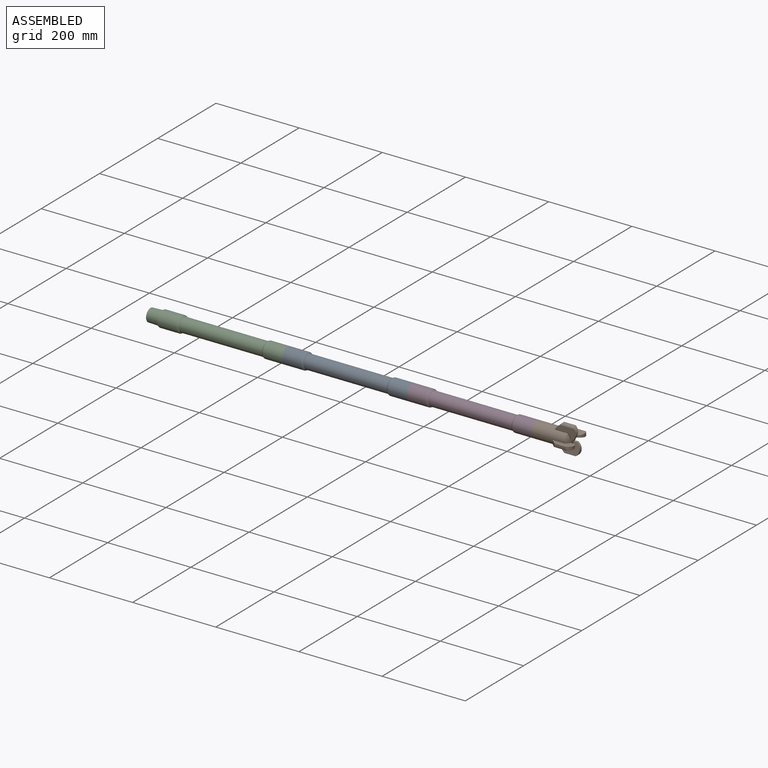
[diagram: assembled view]
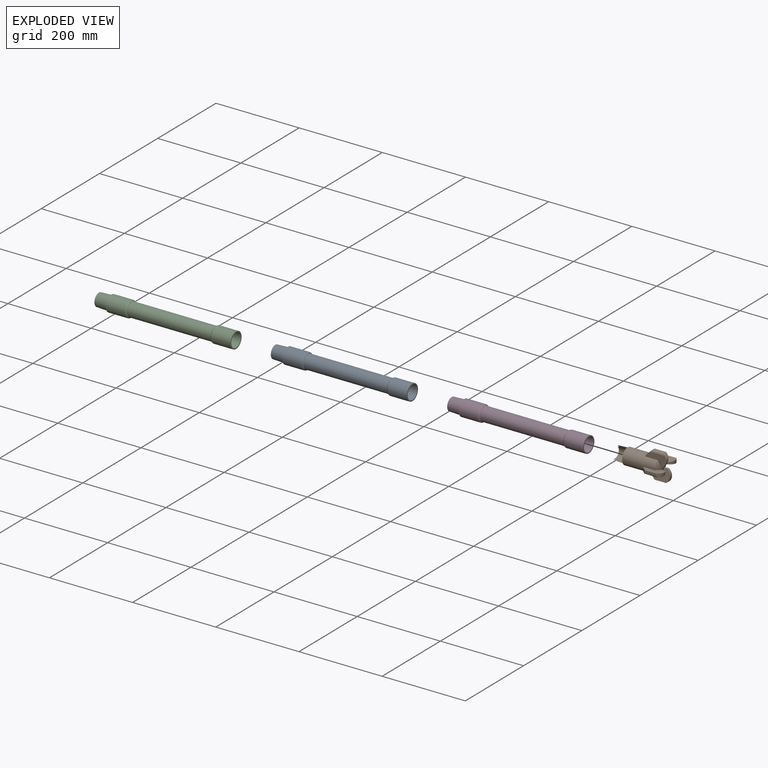
[diagram: exploded view]
GUIDED TOUR — MATED ASSEMBLY (Onshape document b1b5577ab006e5e6c1cf4b18, AutoMate assembly b1b5577ab006e5e6c1cf4b18_703199fe01c6d5e2c7dfa718_9336e0c108ce8c5486444dc7_default)

This assembly has 4 components, labeled P0..P3 below (a component is one placed occurrence of a part; the same part can appear more than once), held together by 3 mates. A mate is a constraint between two components; its type names the relative motion it leaves free:
  PLANAR — leaves sliding in the plane through the listed point (normal = the listed direction) and rotation about that normal free.
Axis/direction vectors are unit vectors and 'through' points are millimeter coordinates, both in the assembly's world frame.

MATES
  1. PLANAR "Planar 2": P3 <-> P0, direction (-1.000, 0.000, 0.000) through (551.21, 30.80, -28.46) mm
  2. PLANAR "Planar 1": P0 <-> P2, direction (-1.000, 0.000, 0.000) through (251.21, 30.80, -28.46) mm
  3. PLANAR "Planar 3": P1 <-> P3, direction (-1.000, 0.000, 0.000) through (851.21, 30.80, -28.46) mm

ASSEMBLY ORDER
  1. P0 — the base component [order heuristic]
  2. P2 [order heuristic]
  3. P3 [order heuristic]
  4. P1 [order heuristic]
Order-tag legend:
  [order heuristic] — this assembly is geometrically interlocked (no collision-free removal order exists), so components are listed in mate-graph order; insertion feasibility is not verified.

Of the 4 components, 3 carry the full construction recipe — the FeatureScript program that regenerates the part's solid from scratch; the rest are supplied as boundary geometry only.
Each toured component is shown spotlighted twice — in the assembled view, then in the exploded view, where a leader line traces a displaced component back to its assembled socket (saturated green if recipe-attached, orange if geometry-only; every other component desaturated gray) — followed by its recipe or geometry summary and the mates that hold it.
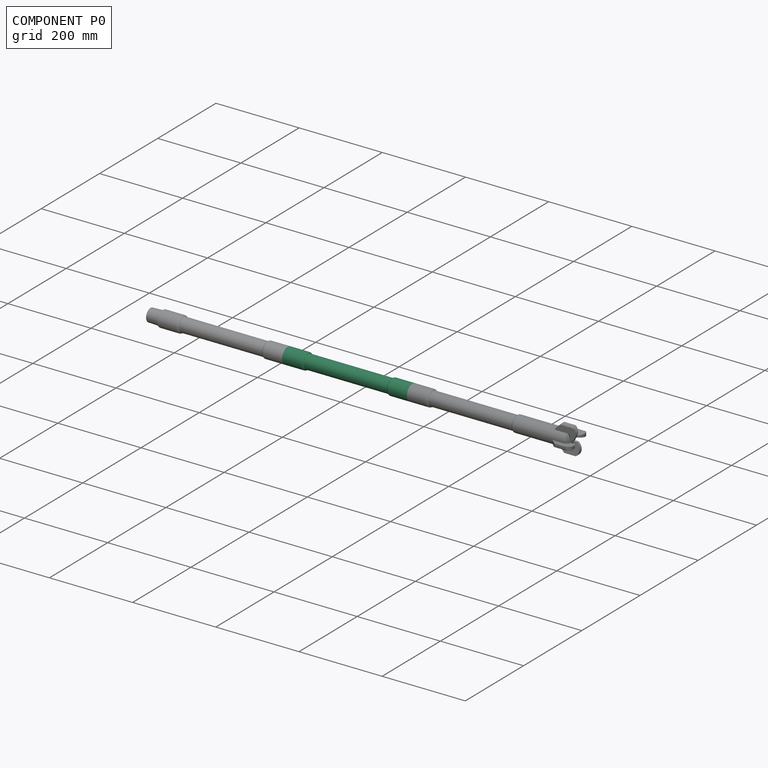
[diagram: component P0 — assembled]
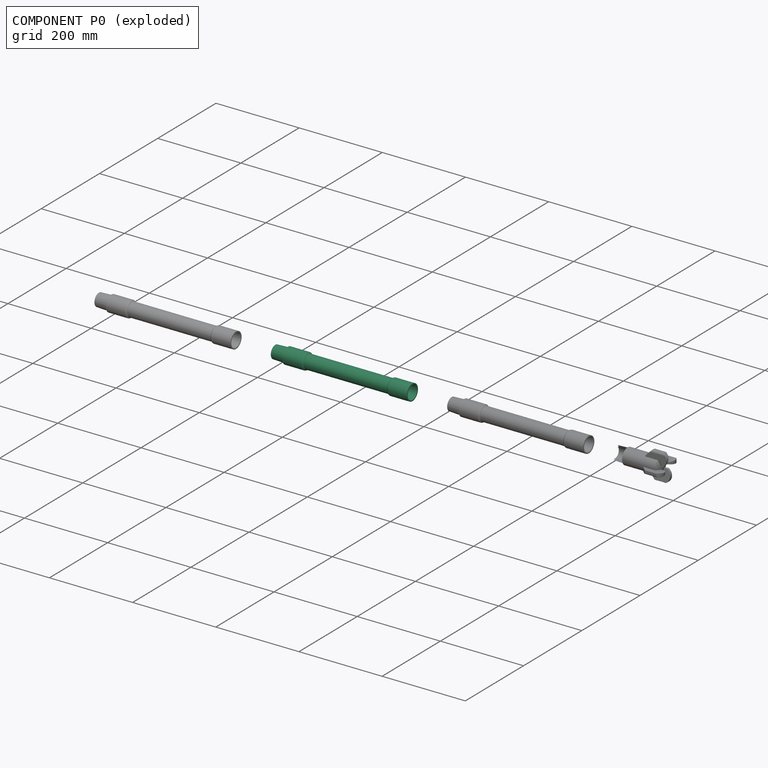
[diagram: component P0 — exploded]
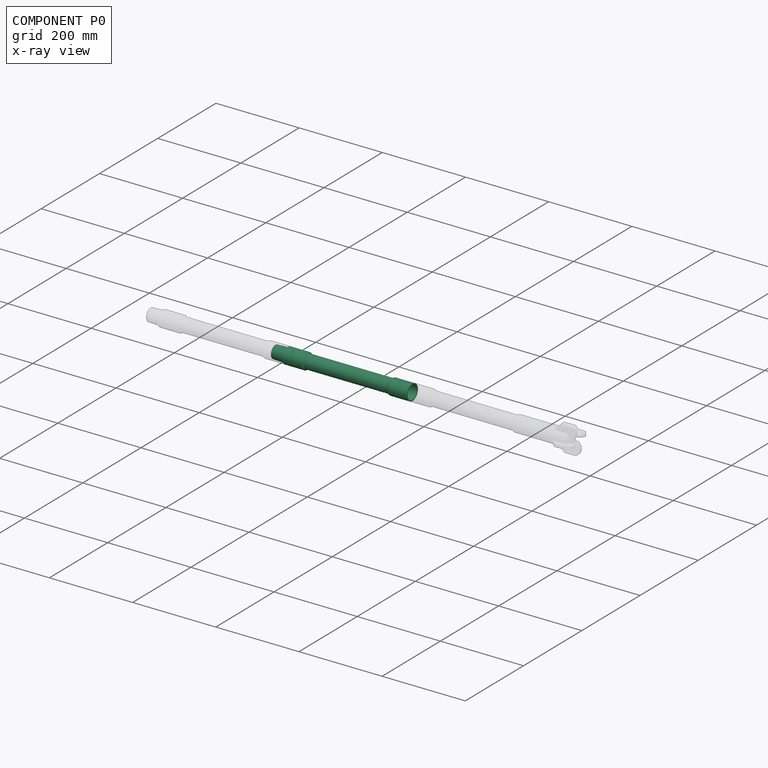
[diagram: component P0 — x-ray view]
COMPONENT P0 — recipe-attached (CADFS 00915986, mesh-verified: the recipe's output STEP matches this component's geometry to below the mesh-comparison resolution (tessellation chordal tolerance ~0.502 mm)).
Held by: PLANAR mate "Planar 2" to P3; PLANAR mate "Planar 1" to P2.
Construction recipe (FeatureScript — the CAD program that rebuilds this solid; sketch coordinates are in the units given by the * unit suffixes, e.g. mm):

FeatureScript 1511;
import(path : "onshape/std/geometry.fs", version : "1511.0");
import(path : "onshape/std/common.fs", version : "1511.0");
const mm = millimeter;
const VERTEX = EntityType.VERTEX;
const EDGE = EntityType.EDGE;
const FACE = EntityType.FACE;
const BODY = EntityType.BODY;
function v(x, y){return vector(x, y);}
function OD(order){return orderDisambiguation(order);}
function OSD(set){return originalSetDisambiguation(set);}
function TD(topology){return topologyDisambiguation(topology);}
function TDD(query){return trueDependencyDisambiguation(query);}
function sQuery(a, b, c) {return sketchEntityQuery(a, b, c);}

annotation { "Feature Type Name" : "Feature", "Feature Type Description" : "" }
export const myFeature = defineFeature(function(context is Context, id is Id, definition is map)
    precondition{}
    {
        {
            var Q0;
            Q0=qCreatedBy(makeId("Front.planeOp"),FACE);
            var sketch = newSketch(context, id + "F0", { "sketchPlane" : qUnion([Q0])});
            skLineSegment(sketch, "E0", {"start": v(0, 12.7) * mm, "end": v(0, 15.24) * mm});
            skLineSegment(sketch, "E1", {"start": v(80, 16.51) * mm, "end": v(80, 19.05) * mm});
            skLineSegment(sketch, "E2", {"start": v(280, 16.51) * mm, "end": v(280, 19.05) * mm});
            skLineSegment(sketch, "E3", {"start": v(290, 12.7) * mm, "end": v(290, 13.97) * mm});
            skLineSegment(sketch, "E4", {"start": v(280, 19.05) * mm, "end": v(330, 19.05) * mm});
            skLineSegment(sketch, "E5", {"start": v(30, 19.05) * mm, "end": v(80, 19.05) * mm});
            skLineSegment(sketch, "E6", {"start": v(280, 16.51) * mm, "end": v(80, 16.51) * mm});
            skLineSegment(sketch, "E7", {"start": v(330, 16.51) * mm, "end": v(330, 19.05) * mm});
            skLineSegment(sketch, "E8", {"start": v(290, 13.97) * mm, "end": v(330, 16.5) * mm});
            skPoint(sketch, "E9.end.orphan", {"position": v(330, 0) * mm});
            skLineSegment(sketch, "E10", {"start": v(30, 12.7) * mm, "end": v(0, 12.7) * mm});
            skLineSegment(sketch, "E11", {"start": v(30, 12.7) * mm, "end": v(290, 12.7) * mm});
            skLineSegment(sketch, "E12", {"start": v(0, 15.24) * mm, "end": v(30, 16.51) * mm});
            skLineSegment(sketch, "E13", {"start": v(30, 16.51) * mm, "end": v(30, 19.05) * mm});
            skPoint(sketch, "E14.end.orphan", {"position": v(290, 0) * mm});
            skPoint(sketch, "E15.end.orphan", {"position": v(80, 0) * mm});
            skSolve(sketch);
        }
        {
            var Q0;
            Q0=qCreatedBy(makeId("Right.planeOp"),FACE);
            var sketch = newSketch(context, id + "F1", { "sketchPlane" : qUnion([Q0])});
            skLineSegment(sketch, "E16", {"start": v(0, 0) * mm, "end": v(0, 12.7) * mm});
            skCircle(sketch, "E17", {"center": v(0, 0) * mm, "radius": 12.7 * mm});
            skSolve(sketch);
        }
        {
            var Q0;
            Q0 = qSketchRegion(id + "F0", true);
            var Q1;
            Q1=sQuery(id+"F1.wireOp",EDGE,"E17");
            revolve(context, id + "F2", {"surfaceOperationType" : NewSurfaceOperationType.NEW, "entities" : qUnion([Q0]), "axis" : qUnion([Q1]), "revolveType" : RevolveType.FULL});
        }
        {
            var Q0;
            Q0=makeQuery(id+"F2.opRevolve","SWEPT_EDGE",EDGE,{"disambiguationData":[OSD([sQuery(id+"F0.wireOp",EDGE,"E1"),sQuery(id+"F0.wireOp",EDGE,"E5")])]});
            var Q1;
            Q1=makeQuery(id+"F2.opRevolve","SWEPT_EDGE",EDGE,{"disambiguationData":[OSD([sQuery(id+"F0.wireOp",EDGE,"E2"),sQuery(id+"F0.wireOp",EDGE,"E4")])]});
            fillet(context, id + "F3", {"entities" : qUnion([Q0, Q1]), "radius" : 5 * mm, "tangentPropagation" : true, "allowEdgeOverflow" : false});
        }
    });
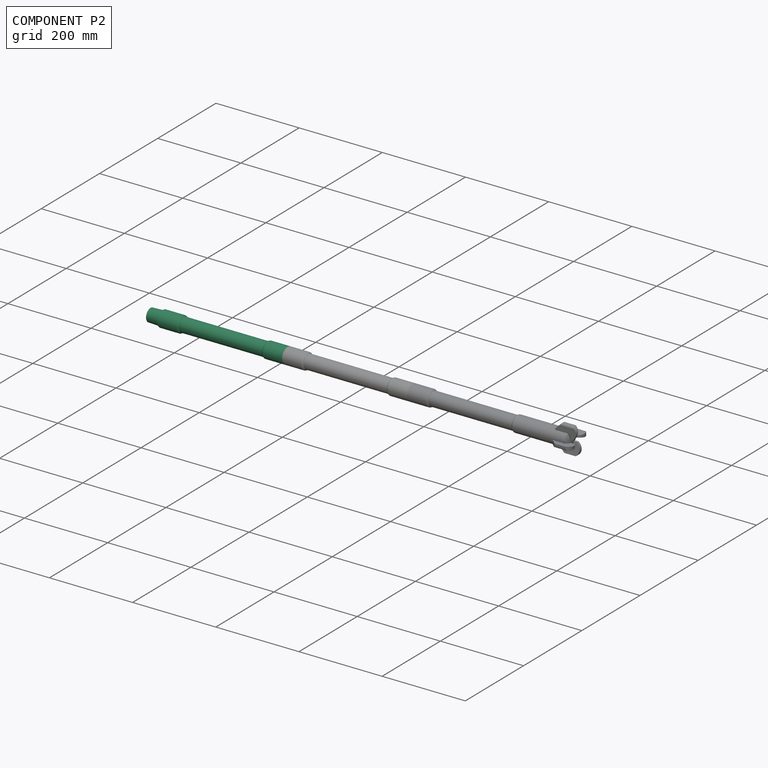
[diagram: component P2 — assembled]
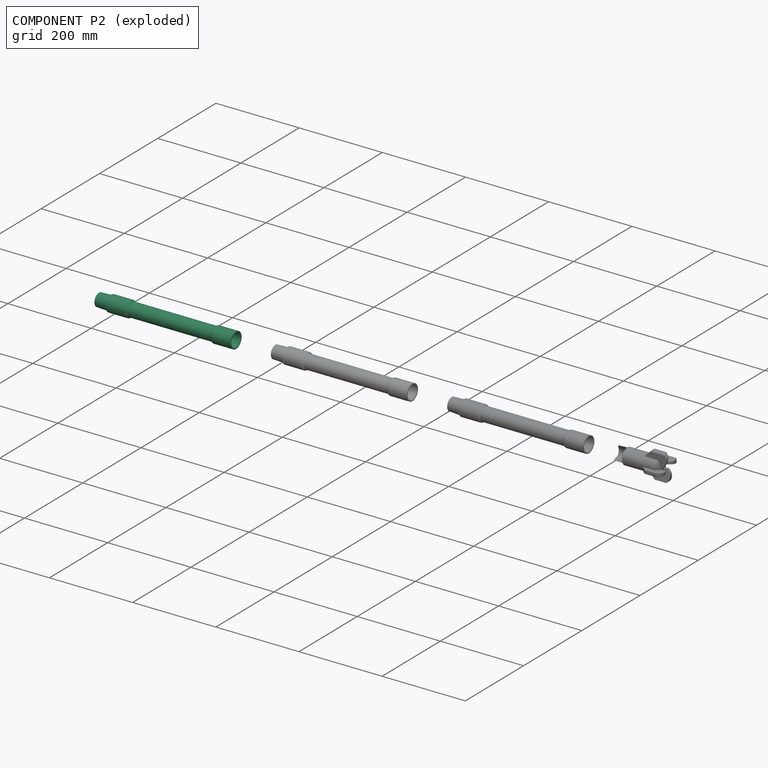
[diagram: component P2 — exploded]
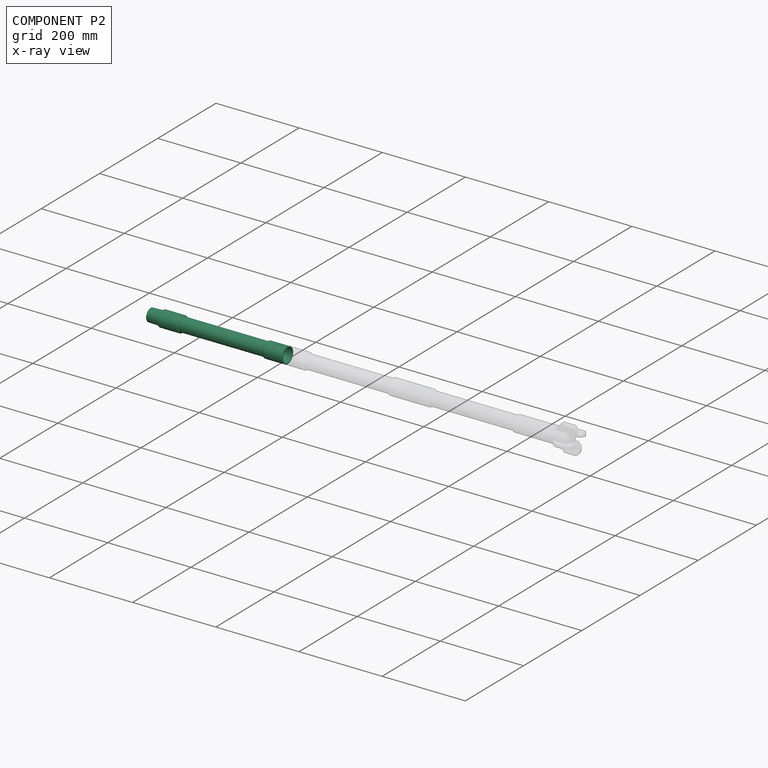
[diagram: component P2 — x-ray view]
COMPONENT P2 — same part as P0 (CADFS 00915986); its construction recipe is shown at P0.
Held by: PLANAR mate "Planar 1" to P0.
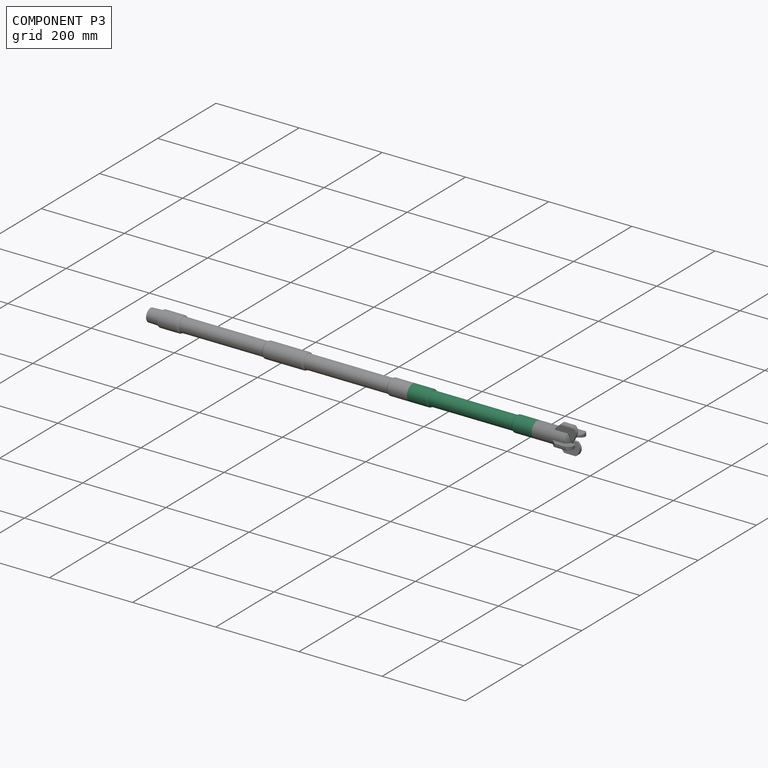
[diagram: component P3 — assembled]
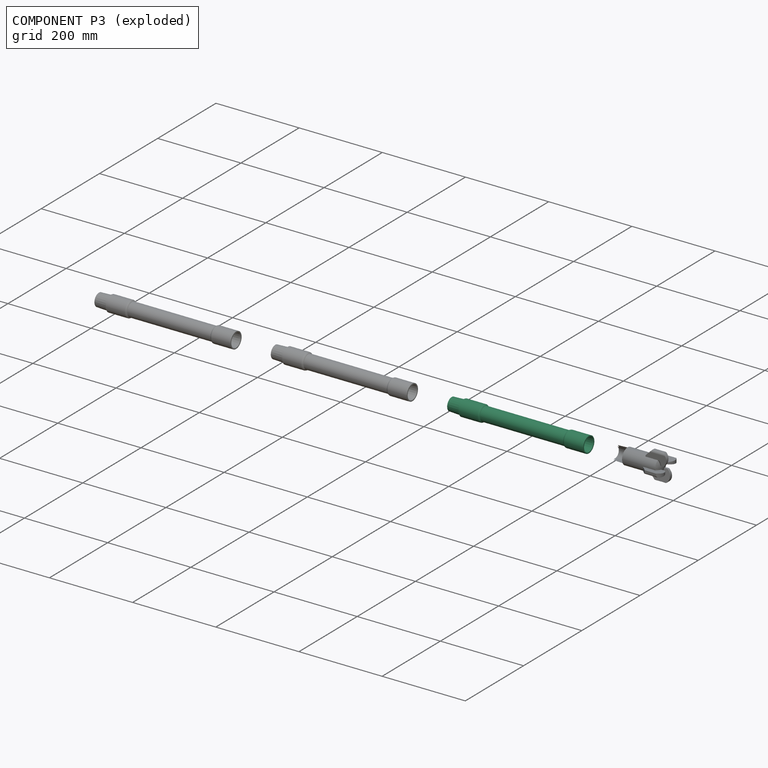
[diagram: component P3 — exploded]
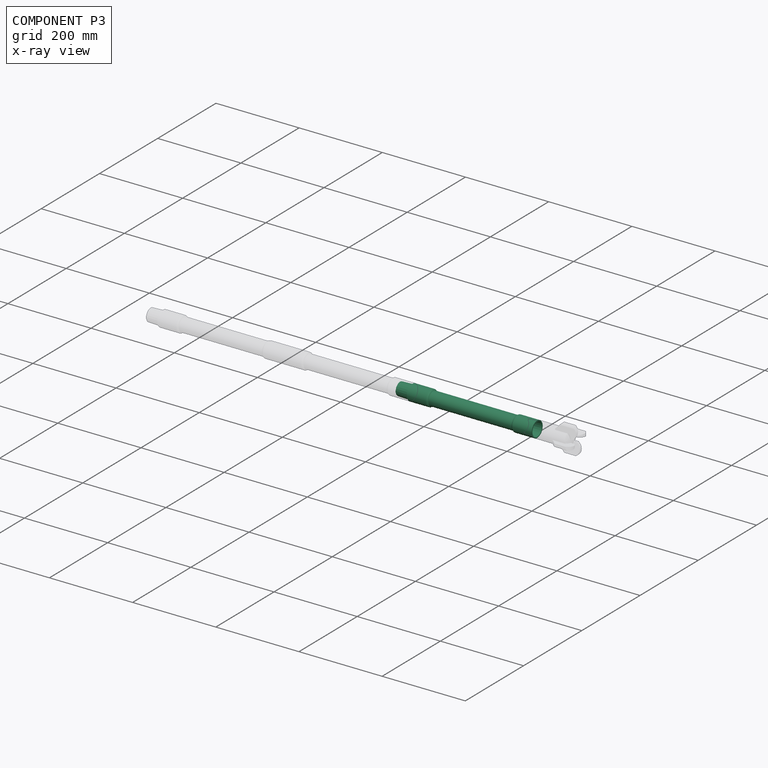
[diagram: component P3 — x-ray view]
COMPONENT P3 — same part as P0 (CADFS 00915986); its construction recipe is shown at P0.
Held by: PLANAR mate "Planar 2" to P0; PLANAR mate "Planar 3" to P1.
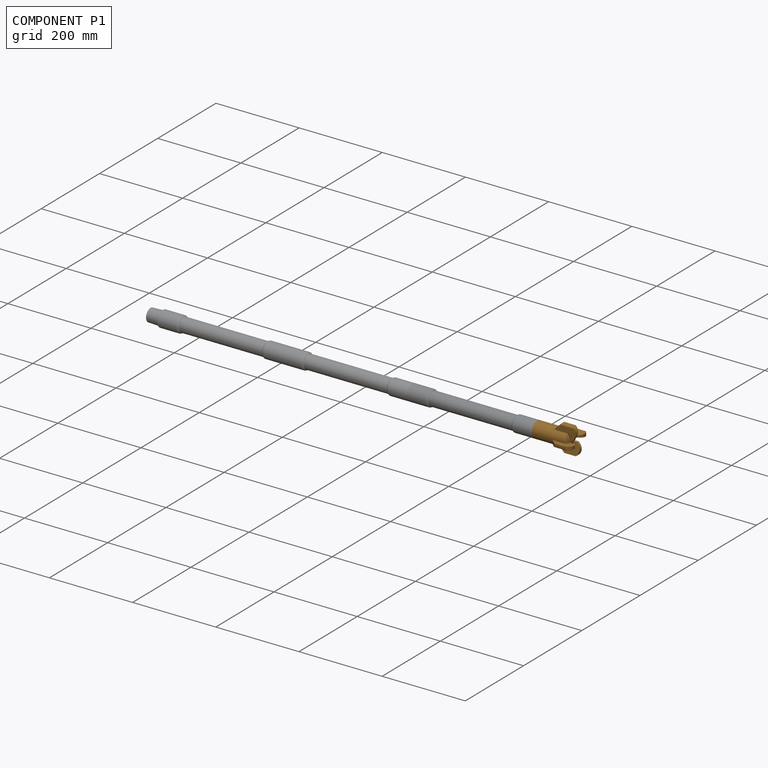
[diagram: component P1 — assembled]
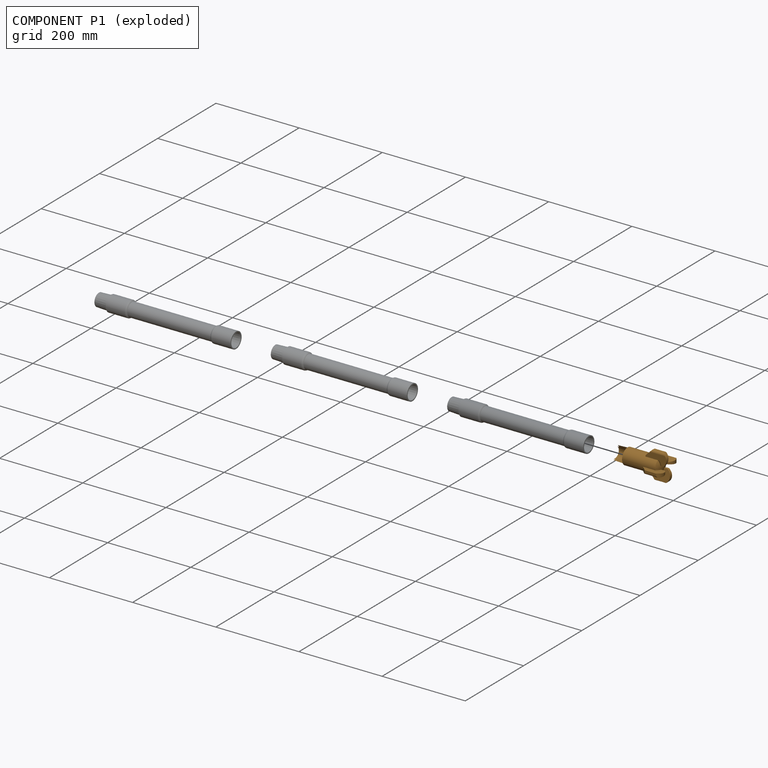
[diagram: component P1 — exploded]
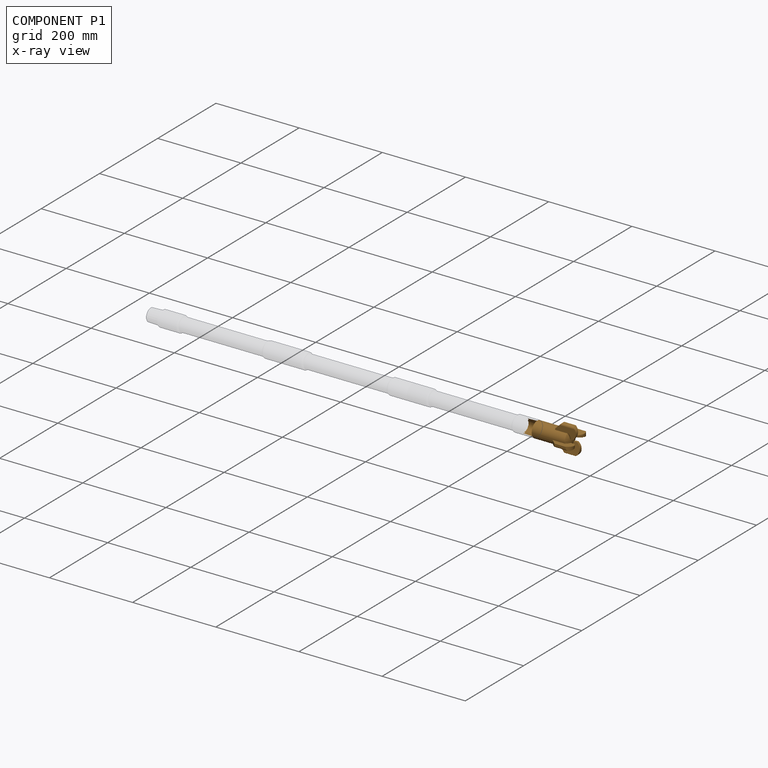
[diagram: component P1 — x-ray view]
COMPONENT P1 — geometry summary (no construction recipe available for this part):
  bounding box: 130.3 x 68.4 x 68.4 mm
  B-rep topology: 1 solid, 63 faces, 352 edges
  volume: 50491 mm^3 (8% of its bounding box)
  symmetry: 4-fold rotationally symmetric about the x axis
Held by: PLANAR mate "Planar 3" to P3.
PROVENANCE & LICENSES
Assembly (occurrences, transforms, mates, per-part STEP geometry): AutoMate dataset, Zenodo record 7776208, CC0.
Construction recipes: CADFS (HuggingFace VladPyatov/CADFS, CC-BY-4.0, layered over the ABC dataset), FeatureScript reconstruction programs keyed by ABC model id.
Join: ABC meta listings map ABC model id -> Onshape documentId; within a shared document, parts are matched by geometric signature (bounding-box dims + volume at 0.1% relative tolerance, exact B-rep face/solid counts).
Verification: 3 of this assembly's 4 components carry a recipe attachment, and every attachment is mesh-verified: the CADFS STEP and the AutoMate member STEP were compared as meshes in their shared local frame (symmetric sampled-point-to-mesh distance); worst across the 3 attachments: below the mesh-comparison resolution (tessellation chordal tolerance ~0.502 mm) on a 334 mm part.
Renders: orthographic iso camera (az 35 / el 25); the floor grid conveys scale (grid pitch printed in each image; no ruler). In the exploded view each component is displaced by its stored offset vector: the offsets alone carry the explosion direction (mate normal/axis signs are not orientation cues and do not encode it), and separation distances are assigned per mate-chain, not proportionally to assembly-order depth.
